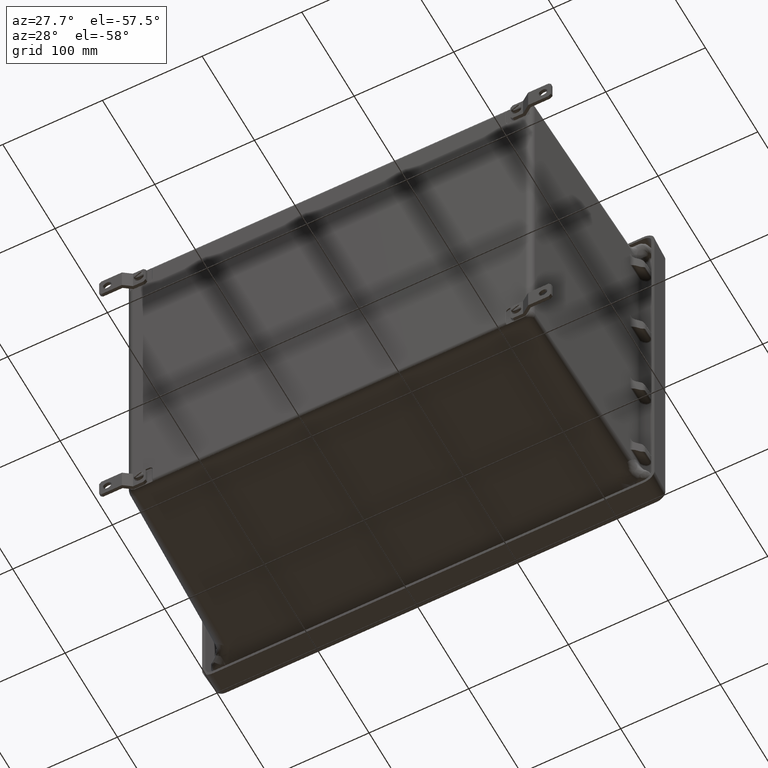
[diagram: clean part render]
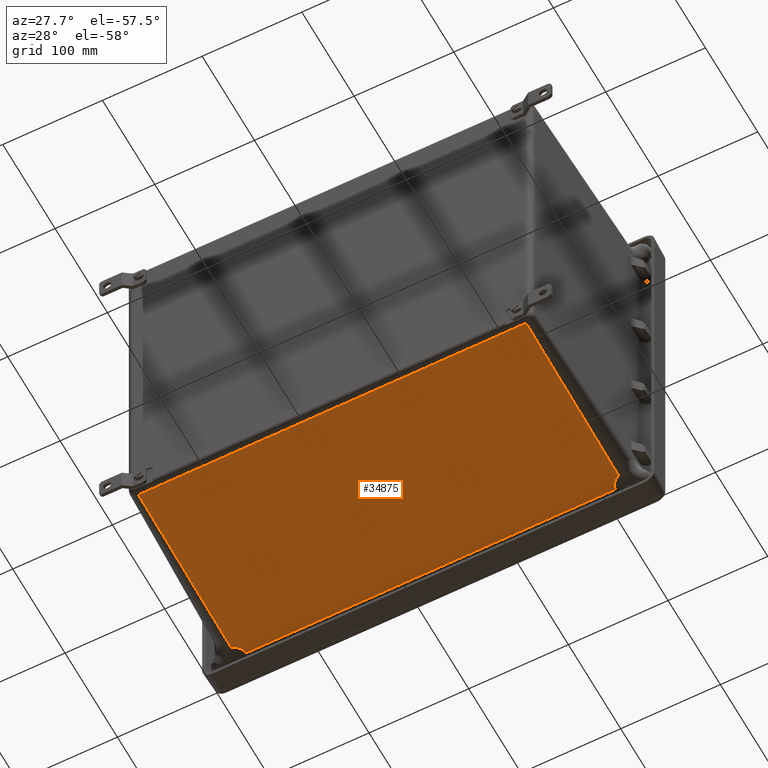
[diagram: same view with one face highlighted and labeled with its STEP entity id]
A machine part, auxiliary view. The second image highlights one B-rep face of the part: STEP entity #34875.
In plain terms, the highlighted planar face has unit normal (0, -0.0349, -0.9994).
Its self-contained STEP definition (entity closure, byte-faithful):
#196 = CARTESIAN_POINT ( 'NONE',  ( -7.464059216593084600, -0.8037049445257672400, -7.314006754853549500 ) ) ;
#304 = VERTEX_POINT ( 'NONE', #26864 ) ;
#774 = CARTESIAN_POINT ( 'NONE',  ( 7.307644187326540800, -0.4851430702196021200, -7.325131180635052500 ) ) ;
#883 = EDGE_CURVE ( 'NONE', #29720, #32002, #23353, .T. ) ;
#2507 = ORIENTED_EDGE ( 'NONE', *, *, #20335, .T. ) ;
#2735 = VERTEX_POINT ( 'NONE', #5661 ) ;
#2756 = FACE_OUTER_BOUND ( 'NONE', #40111, .T. ) ;
#3219 = CARTESIAN_POINT ( 'NONE',  ( 7.528463984243240100, -0.8569190641170593100, -7.312148476849593200 ) ) ;
#3605 = LINE ( 'NONE', #14878, #11854 ) ;
#3706 = CARTESIAN_POINT ( 'NONE',  ( -7.394745710701235100, -0.7257377935175939300, -7.316729427761833500 ) ) ;
#5381 = ORIENTED_EDGE ( 'NONE', *, *, #35296, .T. ) ;
#5590 = DIRECTION ( 'NONE',  ( 0.0000000000000000000, 0.9993908270190957600, -0.03489949670250101100 ) ) ;
#5661 = CARTESIAN_POINT ( 'NONE',  ( 7.654649388251297800, -0.9296581816858076100, -7.309608370891944600 ) ) ;
#6396 = CARTESIAN_POINT ( 'NONE',  ( -7.307748610823951600, -0.4851430702196021200, -7.325131180635052500 ) ) ;
#6726 = CARTESIAN_POINT ( 'NONE',  ( 7.616648632118720600, -0.9117984193186851000, -7.310232047536745300 ) ) ;
#7076 = CARTESIAN_POINT ( 'NONE',  ( -7.616752408780906900, -0.9117981153162215700, -7.310232058152741400 ) ) ;
#7111 = CARTESIAN_POINT ( 'NONE',  ( 7.309054965098772200, -0.5826758245312541100, -7.321725261803839800 ) ) ;
#7225 = CARTESIAN_POINT ( 'NONE',  ( -7.349857703268320100, -0.6556977760696960400, -7.319175279066330500 ) ) ;
#7274 = CARTESIAN_POINT ( 'NONE',  ( 7.297403538881949800, 0.2228342373329148800, -7.349854292997481900 ) ) ;
#7646 = VERTEX_POINT ( 'NONE', #7740 ) ;
#7740 = CARTESIAN_POINT ( 'NONE',  ( -7.654753811748701500, -0.9296581816858050500, -7.309608370891943700 ) ) ;
#9387 = LINE ( 'NONE', #19415, #44422 ) ;
#10111 = CARTESIAN_POINT ( 'NONE',  ( 7.309054965098772200, -0.5826758245312541100, -7.321725261803839800 ) ) ;
#10460 = DIRECTION ( 'NONE',  ( 0.0000000000000000000, -0.03489949670250101100, -0.9993908270190957600 ) ) ;
#10759 = CARTESIAN_POINT ( 'NONE',  ( -7.329134590385807600, -0.6194257665781495200, -7.320441925548783100 ) ) ;
#11332 = DIRECTION ( 'NONE',  ( 0.01445433466142363400, 0.9992864213068273200, -0.03489585077468926300 ) ) ;
#11854 = VECTOR ( 'NONE', #11332, 39.37007874015748900 ) ;
#13013 = LINE ( 'NONE', #33648, #38707 ) ;
#13981 = VECTOR ( 'NONE', #24943, 39.37007874015748900 ) ;
#14298 = CARTESIAN_POINT ( 'NONE',  ( -7.314042796680560300, -0.5918340032460838200, -7.321405451155975200 ) ) ;
#14878 = CARTESIAN_POINT ( 'NONE',  ( -7.300706522163877400, 0.001704905871062015500, -7.342132286585638200 ) ) ;
#15215 = EDGE_CURVE ( 'NONE', #17022, #304, #18098, .T. ) ;
#15889 = DIRECTION ( 'NONE',  ( 1.000000000000000000, -0.0000000000000000000, -0.0000000000000000000 ) ) ;
#16996 = VECTOR ( 'NONE', #39985, 39.37007874015748100 ) ;
#17022 = VERTEX_POINT ( 'NONE', #38777 ) ;
#17043 = ORIENTED_EDGE ( 'NONE', *, *, #34883, .T. ) ;
#17214 = CARTESIAN_POINT ( 'NONE',  ( 7.394644635123816200, -0.7257423505078051100, -7.316729268628226800 ) ) ;
#17714 = CARTESIAN_POINT ( 'NONE',  ( -7.528566390671470800, -0.8569176296793683500, -7.312148526941263600 ) ) ;
#18098 = LINE ( 'NONE', #25982, #16996 ) ;
#19415 = CARTESIAN_POINT ( 'NONE',  ( -7.654753811748701500, -0.4851430702196021200, -7.325131180635052500 ) ) ;
#19890 = ORIENTED_EDGE ( 'NONE', *, *, #29750, .T. ) ;
#20280 = CARTESIAN_POINT ( 'NONE',  ( -7.309159388596182100, -0.5826758245312592100, -7.321725261803839800 ) ) ;
#20335 = EDGE_CURVE ( 'NONE', #43527, #29720, #9387, .T. ) ;
#20741 = CARTESIAN_POINT ( 'NONE',  ( 7.463957665891356900, -0.8037076629618423700, -7.314006659923668600 ) ) ;
#21241 = CARTESIAN_POINT ( 'NONE',  ( -7.479651890069358300, -0.8179912774182391800, -7.313507865115731500 ) ) ;
#22844 = VERTEX_POINT ( 'NONE', #20280 ) ;
#22897 = VECTOR ( 'NONE', #28396, 39.37007874015748900 ) ;
#23353 = LINE ( 'NONE', #7274, #13981 ) ;
#23800 = ORIENTED_EDGE ( 'NONE', *, *, #883, .T. ) ;
#24262 = CARTESIAN_POINT ( 'NONE',  ( 7.511757589790862600, -0.8445468327193491600, -7.312580524690330800 ) ) ;
#24747 = CARTESIAN_POINT ( 'NONE',  ( -7.420096211062349000, -0.7586483169533935200, -7.315580166959078300 ) ) ;
#24783 = B_SPLINE_CURVE_WITH_KNOTS ( 'NONE', 3,
 ( #10111, #31101, #38143, #17214, #41606, #20741, #45134, #24262, #3219, #27770, #6726, #31247 ),
 .UNSPECIFIED., .F., .F.,
 ( 4, 2, 2, 2, 2, 4 ),
 ( -2.808971856024565200E-005, 0.003161289396131364500, 0.006350668510822975400, 0.007945358068168779200, 0.009540047625514587500, 0.01272942674020620000 ),
 .UNSPECIFIED. ) ;
#24936 = EDGE_CURVE ( 'NONE', #17022, #2735, #41393, .T. ) ;
#24943 = DIRECTION ( 'NONE',  ( 0.01445433466142398100, -0.9992864213068273200, 0.03489585077468926300 ) ) ;
#25982 = CARTESIAN_POINT ( 'NONE',  ( -7.654753811748701500, -7.887942248218545100, -7.066619736946452500 ) ) ;
#26864 = CARTESIAN_POINT ( 'NONE',  ( -7.654753811748701500, -7.887942248218545100, -7.066619736946452500 ) ) ;
#27770 = CARTESIAN_POINT ( 'NONE',  ( 7.580139454973226200, -0.8917003945618599000, -7.310933886026515600 ) ) ;
#27963 = PLANE ( 'NONE',  #32158 ) ;
#28113 = CARTESIAN_POINT ( 'NONE',  ( -7.654753811748701500, -0.9296581816858050500, -7.309608370891943700 ) ) ;
#28257 = CARTESIAN_POINT ( 'NONE',  ( -7.360623039322360800, -0.6735392206200875300, -7.318552242093787200 ) ) ;
#28396 = DIRECTION ( 'NONE',  ( 0.0000000000000000000, 0.9993908270190957600, -0.03489949670250101100 ) ) ;
#29060 = EDGE_CURVE ( 'NONE', #304, #7646, #13013, .T. ) ;
#29720 = VERTEX_POINT ( 'NONE', #774 ) ;
#29750 = EDGE_CURVE ( 'NONE', #22844, #43527, #3605, .T. ) ;
#31101 = CARTESIAN_POINT ( 'NONE',  ( 7.328739271498353200, -0.6195911084577755400, -7.320436151683120200 ) ) ;
#31247 = CARTESIAN_POINT ( 'NONE',  ( 7.654649388251297800, -0.9296581816858076100, -7.309608370891944600 ) ) ;
#31451 = CARTESIAN_POINT ( 'NONE',  ( -7.654753811748701500, 0.006819840780926731900, -7.342310904048591000 ) ) ;
#31493 = B_SPLINE_CURVE_WITH_KNOTS ( 'NONE', 3,
 ( #28113, #7076, #38625, #17714, #42125, #21241, #196, #24747, #3706, #28257, #7225, #31736, #10759, #35267, #14298, #38776 ),
 .UNSPECIFIED., .F., .F.,
 ( 4, 2, 2, 2, 2, 2, 2, 4 ),
 ( 3.469446951953614200E-018, 0.003164965923887161300, 0.004747448885830773800, 0.006329931847774386700, 0.009494897771661620400, 0.01107738073360521400, 0.01186862221457699000, 0.01265986369554877000 ),
 .UNSPECIFIED. ) ;
#31736 = CARTESIAN_POINT ( 'NONE',  ( -7.334248267848708200, -0.6285447253701931200, -7.320123484490803600 ) ) ;
#31808 = ORIENTED_EDGE ( 'NONE', *, *, #15215, .T. ) ;
#32002 = VERTEX_POINT ( 'NONE', #7111 ) ;
#32158 = AXIS2_PLACEMENT_3D ( 'NONE', #31451, #10460, #34966 ) ;
#33024 = ORIENTED_EDGE ( 'NONE', *, *, #29060, .T. ) ;
#33648 = CARTESIAN_POINT ( 'NONE',  ( -7.654753811748701500, 0.006819840780926731900, -7.342310904048591000 ) ) ;
#34875 = ADVANCED_FACE ( 'NONE', ( #2756 ), #27963, .T. ) ;
#34883 = EDGE_CURVE ( 'NONE', #7646, #22844, #31493, .T. ) ;
#34966 = DIRECTION ( 'NONE',  ( 0.0000000000000000000, 0.9993908270190957600, -0.03489949670250101100 ) ) ;
#35267 = CARTESIAN_POINT ( 'NONE',  ( -7.319046571473617000, -0.6011003626913401500, -7.321081862753759500 ) ) ;
#35296 = EDGE_CURVE ( 'NONE', #32002, #2735, #24783, .T. ) ;
#38143 = CARTESIAN_POINT ( 'NONE',  ( 7.349148013917060900, -0.6561458011841856400, -7.319159633684577700 ) ) ;
#38616 = CARTESIAN_POINT ( 'NONE',  ( 7.654649388251297800, 0.006819840780926751000, -7.342310904048592800 ) ) ;
#38625 = CARTESIAN_POINT ( 'NONE',  ( -7.580242635006599400, -0.8916997112172345700, -7.310933909889436100 ) ) ;
#38707 = VECTOR ( 'NONE', #5590, 39.37007874015748900 ) ;
#38777 = CARTESIAN_POINT ( 'NONE',  ( 7.654649388251297800, -7.887942248218545100, -7.066619736946453400 ) ) ;
#38776 = CARTESIAN_POINT ( 'NONE',  ( -7.309159388596182100, -0.5826758245312592100, -7.321725261803839800 ) ) ;
#38965 = ORIENTED_EDGE ( 'NONE', *, *, #24936, .F. ) ;
#39985 = DIRECTION ( 'NONE',  ( -1.000000000000000000, 0.0000000000000000000, 0.0000000000000000000 ) ) ;
#40111 = EDGE_LOOP ( 'NONE', ( #38965, #31808, #33024, #17043, #19890, #2507, #23800, #5381 ) ) ;
#41393 = LINE ( 'NONE', #38616, #22897 ) ;
#41606 = CARTESIAN_POINT ( 'NONE',  ( 7.419995021730071200, -0.7586520831486338600, -7.315580035440643100 ) ) ;
#42125 = CARTESIAN_POINT ( 'NONE',  ( -7.511859758859898800, -0.8445451171412280400, -7.312580584599639400 ) ) ;
#43527 = VERTEX_POINT ( 'NONE', #6396 ) ;
#44422 = VECTOR ( 'NONE', #15889, 39.37007874015748100 ) ;
#45134 = CARTESIAN_POINT ( 'NONE',  ( 7.479550146145973200, -0.8179936296660285100, -7.313507782973425200 ) ) ;